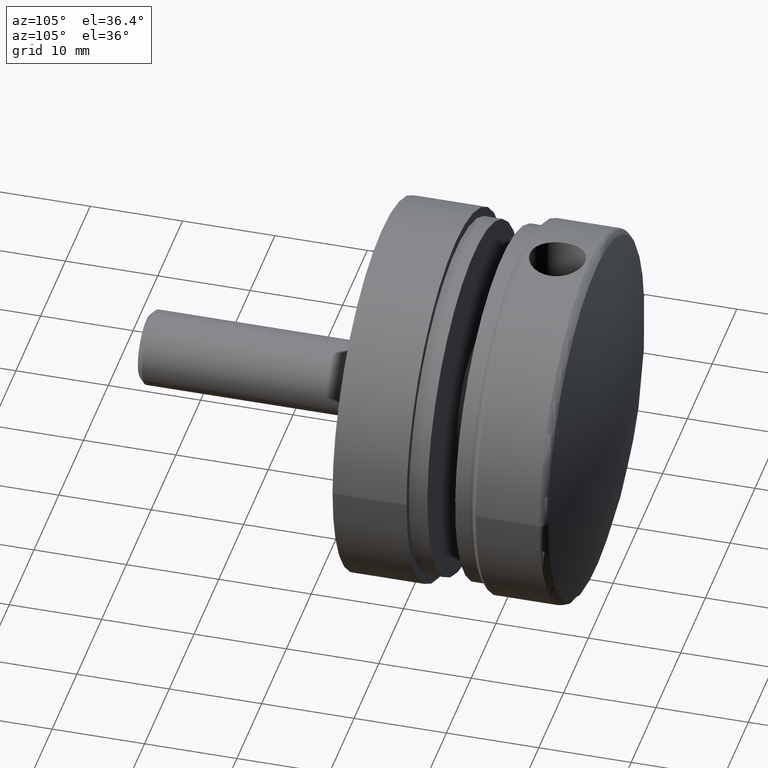
[diagram: clean part render]
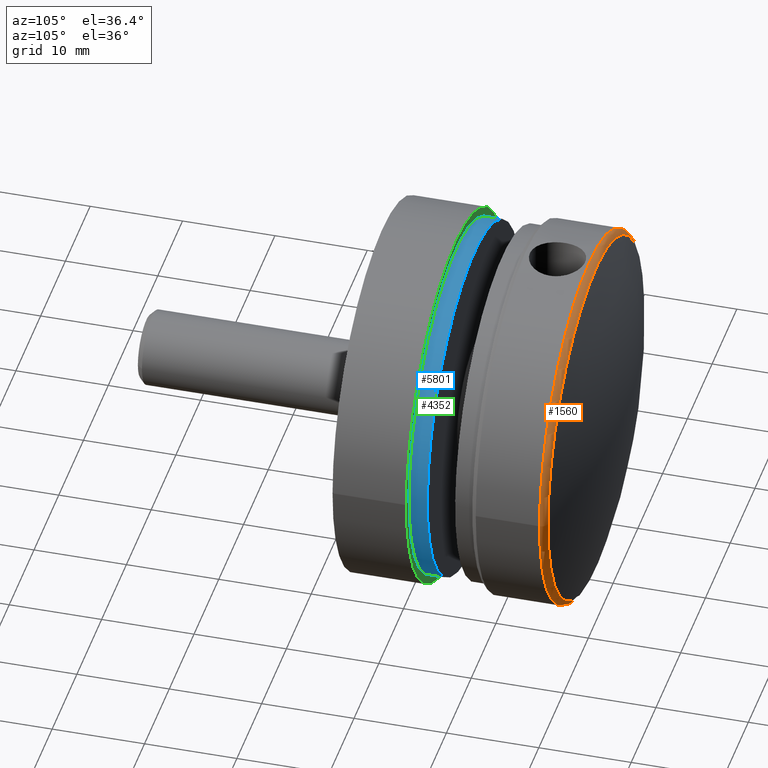
[diagram: same view with three faces highlighted in distinct colors, each labeled with its STEP entity id]
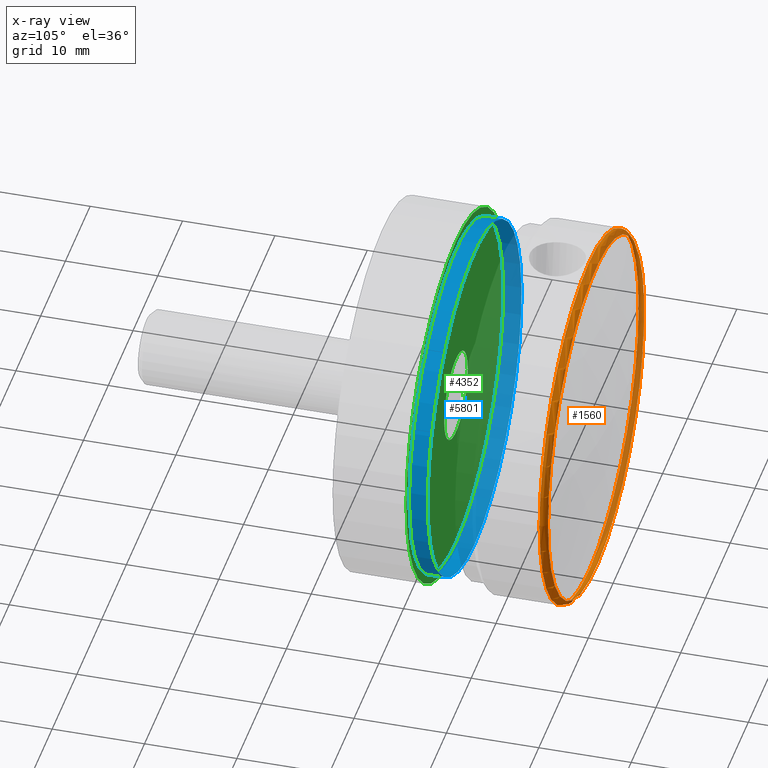
[diagram: x-ray of the same camera — body ghosted, the three highlighted faces saturated]
A machine part, auxiliary view with three faces highlighted in distinct colors.
The next image is the same camera in x-ray (body ghosted, the three faces saturated) — at least one of them is partly hidden behind the body in this view.
Their STEP definitions:

[orange] entity #1560 — the highlighted toroidal blend (fillet) surface has major radius 19.2 mm and minor (blend) radius 0.8 mm.
#152 = TOROIDAL_SURFACE ( 'NONE', #9242, 19.19999999999999574, 0.8000000000000000444 ) ;
#1560 = ADVANCED_FACE ( 'NONE', ( #14812, #9761 ), #152, .T. ) ;
#1967 = EDGE_CURVE ( 'NONE', #6767, #6767, #5192, .T. ) ;
#3087 = ORIENTED_EDGE ( 'NONE', *, *, #5906, .F. ) ;
#3584 = EDGE_LOOP ( 'NONE', ( #3087 ) ) ;
#5192 = CIRCLE ( 'NONE', #6696, 19.99999999999999289 ) ;
#5325 = CARTESIAN_POINT ( 'NONE',  ( -7.007641024777777317E-15, 7.405988364528839796, 0.000000000000000000 ) ) ;
#5906 = EDGE_CURVE ( 'NONE', #13325, #13325, #11788, .T. ) ;
#6523 = AXIS2_PLACEMENT_3D ( 'NONE', #14952, #10344, #12742 ) ;
#6696 = AXIS2_PLACEMENT_3D ( 'NONE', #5325, #13444, #8732 ) ;
#6767 = VERTEX_POINT ( 'NONE', #10189 ) ;
#8248 = ORIENTED_EDGE ( 'NONE', *, *, #1967, .F. ) ;
#8732 = DIRECTION ( 'NONE',  ( 1.000000000000000000, 9.540979117872442964E-16, 0.000000000000000000 ) ) ;
#9242 = AXIS2_PLACEMENT_3D ( 'NONE', #13650, #11330, #13697 ) ;
#9761 = FACE_OUTER_BOUND ( 'NONE', #12787, .T. ) ;
#10189 = CARTESIAN_POINT ( 'NONE',  ( 19.99999999999998579, 7.405988364528859336, 0.000000000000000000 ) ) ;
#10344 = DIRECTION ( 'NONE',  ( -9.462128050782586841E-16, 1.000000000000000000, 0.000000000000000000 ) ) ;
#11326 = CARTESIAN_POINT ( 'NONE',  ( 19.42800593765456441, 8.172808612301606601, 0.000000000000000000 ) ) ;
#11330 = DIRECTION ( 'NONE',  ( 9.462128050782586841E-16, -1.000000000000000000, -0.000000000000000000 ) ) ;
#11788 = CIRCLE ( 'NONE', #6523, 19.42800593765462480 ) ;
#12742 = DIRECTION ( 'NONE',  ( 1.000000000000000000, 9.821882027923899333E-16, 0.000000000000000000 ) ) ;
#12787 = EDGE_LOOP ( 'NONE', ( #8248 ) ) ;
#13325 = VERTEX_POINT ( 'NONE', #11326 ) ;
#13444 = DIRECTION ( 'NONE',  ( 9.462128050782586841E-16, -1.000000000000000000, -0.000000000000000000 ) ) ;
#13650 = CARTESIAN_POINT ( 'NONE',  ( -7.007641024777778895E-15, 7.405988364528839796, 0.000000000000000000 ) ) ;
#13697 = DIRECTION ( 'NONE',  ( 1.000000000000000000, 9.462128050782586841E-16, 0.000000000000000000 ) ) ;
#14812 = FACE_OUTER_BOUND ( 'NONE', #3584, .T. ) ;
#14952 = CARTESIAN_POINT ( 'NONE',  ( -6.182504818605450607E-14, 8.172808612301588838, 0.000000000000000000 ) ) ;

[blue] entity #5801 — the highlighted cylindrical surface (bore or boss wall) has radius 19 mm, axis along (-0, -1, -0).
#346 = DIRECTION ( 'NONE',  ( 0.000000000000000000, 0.000000000000000000, -1.000000000000000000 ) ) ;
#642 = CARTESIAN_POINT ( 'NONE',  ( 0.000000000000000000, 0.000000000000000000, 0.000000000000000000 ) ) ;
#1337 = DIRECTION ( 'NONE',  ( -0.000000000000000000, -1.000000000000000000, -0.000000000000000000 ) ) ;
#2506 = CIRCLE ( 'NONE', #12846, 19.00000000000000000 ) ;
#3437 = AXIS2_PLACEMENT_3D ( 'NONE', #642, #9900, #12158 ) ;
#4936 = EDGE_LOOP ( 'NONE', ( #8476 ) ) ;
#5088 = DIRECTION ( 'NONE',  ( -0.000000000000000000, -1.000000000000000000, -0.000000000000000000 ) ) ;
#5144 = EDGE_LOOP ( 'NONE', ( #8462 ) ) ;
#5527 = CARTESIAN_POINT ( 'NONE',  ( 0.000000000000000000, 0.000000000000000000, -19.00000000000000000 ) ) ;
#5801 = ADVANCED_FACE ( 'NONE', ( #11409, #7598 ), #13588, .T. ) ;
#6637 = AXIS2_PLACEMENT_3D ( 'NONE', #14352, #5088, #346 ) ;
#7245 = CIRCLE ( 'NONE', #6637, 19.00000000000000000 ) ;
#7598 = FACE_OUTER_BOUND ( 'NONE', #5144, .T. ) ;
#7814 = EDGE_CURVE ( 'NONE', #12433, #12433, #7245, .T. ) ;
#8462 = ORIENTED_EDGE ( 'NONE', *, *, #7814, .F. ) ;
#8476 = ORIENTED_EDGE ( 'NONE', *, *, #12541, .T. ) ;
#9426 = DIRECTION ( 'NONE',  ( 0.000000000000000000, 0.000000000000000000, -1.000000000000000000 ) ) ;
#9506 = VERTEX_POINT ( 'NONE', #14857 ) ;
#9900 = DIRECTION ( 'NONE',  ( -0.000000000000000000, -1.000000000000000000, -0.000000000000000000 ) ) ;
#11409 = FACE_OUTER_BOUND ( 'NONE', #4936, .T. ) ;
#11920 = CARTESIAN_POINT ( 'NONE',  ( 0.000000000000000000, 2.000000000000000000, 0.000000000000000000 ) ) ;
#12158 = DIRECTION ( 'NONE',  ( 0.000000000000000000, 0.000000000000000000, -1.000000000000000000 ) ) ;
#12433 = VERTEX_POINT ( 'NONE', #5527 ) ;
#12541 = EDGE_CURVE ( 'NONE', #9506, #9506, #2506, .T. ) ;
#12846 = AXIS2_PLACEMENT_3D ( 'NONE', #11920, #1337, #9426 ) ;
#13588 = CYLINDRICAL_SURFACE ( 'NONE', #3437, 19.00000000000000000 ) ;
#14352 = CARTESIAN_POINT ( 'NONE',  ( 0.000000000000000000, 0.000000000000000000, 0.000000000000000000 ) ) ;
#14857 = CARTESIAN_POINT ( 'NONE',  ( 0.000000000000000000, 2.000000000000000000, -19.00000000000000000 ) ) ;

[green] entity #4352 — the highlighted planar face has unit normal (-0, 1, -0).
#490 = FACE_OUTER_BOUND ( 'NONE', #1912, .T. ) ;
#1414 = ORIENTED_EDGE ( 'NONE', *, *, #4548, .T. ) ;
#1912 = EDGE_LOOP ( 'NONE', ( #1414 ) ) ;
#2080 = PLANE ( 'NONE',  #11791 ) ;
#2144 = EDGE_LOOP ( 'NONE', ( #7554 ) ) ;
#3243 = DIRECTION ( 'NONE',  ( -1.000000000000000000, 4.336808689942017736E-16, 0.000000000000000000 ) ) ;
#3536 = VERTEX_POINT ( 'NONE', #7782 ) ;
#3749 = EDGE_CURVE ( 'NONE', #3536, #3536, #3950, .T. ) ;
#3950 = CIRCLE ( 'NONE', #14668, 4.750000000000004441 ) ;
#4026 = CARTESIAN_POINT ( 'NONE',  ( 3.469446951953613400E-15, 7.999999999999998224, 0.000000000000000000 ) ) ;
#4071 = DIRECTION ( 'NONE',  ( -1.000000000000000000, 3.652049423109064375E-16, 0.000000000000000000 ) ) ;
#4343 = CARTESIAN_POINT ( 'NONE',  ( -20.00000000000000355, 8.000000000000000000, 0.000000000000000000 ) ) ;
#4352 = ADVANCED_FACE ( 'NONE', ( #490, #5364 ), #2080, .T. ) ;
#4548 = EDGE_CURVE ( 'NONE', #8973, #8973, #13527, .T. ) ;
#4550 = DIRECTION ( 'NONE',  ( -1.000000000000000000, 4.336808689942016257E-16, 0.000000000000000000 ) ) ;
#5364 = FACE_BOUND ( 'NONE', #2144, .T. ) ;
#6338 = DIRECTION ( 'NONE',  ( 4.336808689942017736E-16, 1.000000000000000000, -0.000000000000000000 ) ) ;
#7554 = ORIENTED_EDGE ( 'NONE', *, *, #3749, .F. ) ;
#7782 = CARTESIAN_POINT ( 'NONE',  ( -4.750000000000000888, 8.000000000000000000, 0.000000000000000000 ) ) ;
#7954 = CARTESIAN_POINT ( 'NONE',  ( 3.469446951953610245E-15, 7.999999999999991118, 0.000000000000000000 ) ) ;
#8973 = VERTEX_POINT ( 'NONE', #4343 ) ;
#10156 = DIRECTION ( 'NONE',  ( 4.336808689942017736E-16, 1.000000000000000000, -0.000000000000000000 ) ) ;
#11791 = AXIS2_PLACEMENT_3D ( 'NONE', #14766, #10156, #3243 ) ;
#12077 = AXIS2_PLACEMENT_3D ( 'NONE', #7954, #13767, #4550 ) ;
#13527 = CIRCLE ( 'NONE', #12077, 20.00000000000000711 ) ;
#13767 = DIRECTION ( 'NONE',  ( 4.336808689942017736E-16, 1.000000000000000000, -0.000000000000000000 ) ) ;
#14668 = AXIS2_PLACEMENT_3D ( 'NONE', #4026, #6338, #4071 ) ;
#14766 = CARTESIAN_POINT ( 'NONE',  ( -20.00000000000000355, 8.000000000000003553, 0.000000000000000000 ) ) ;